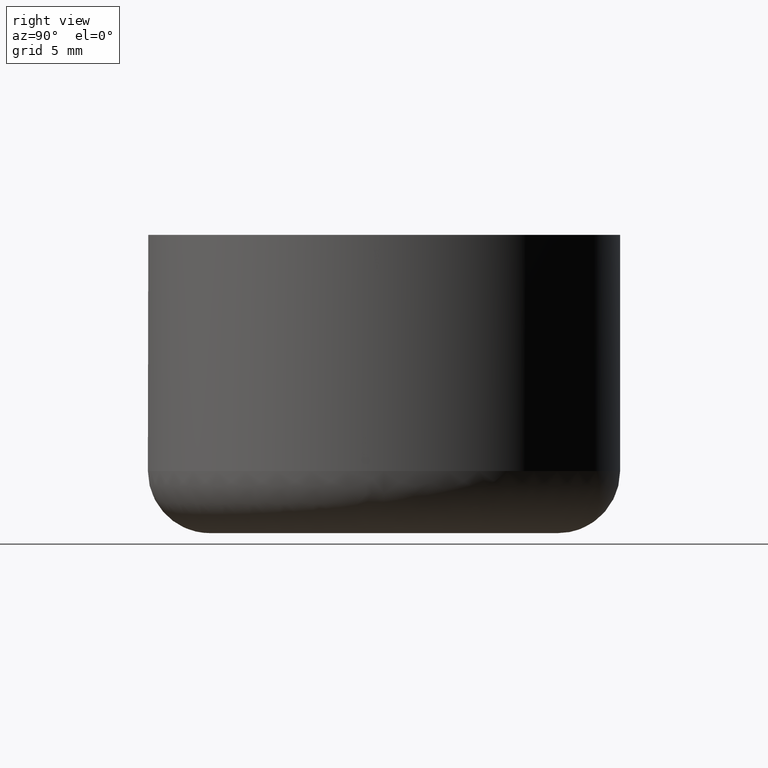
[diagram: clean part render]
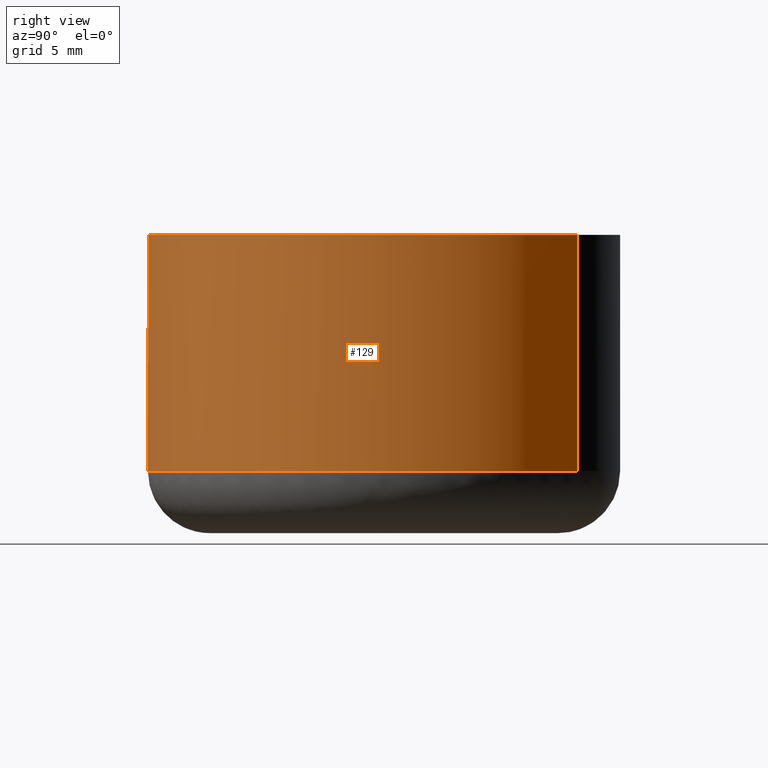
[diagram: same view with one face highlighted and labeled with its STEP entity id]
A machine part, right view. The second image highlights one B-rep face of the part: STEP entity #129.
In plain terms, the highlighted cylindrical surface (partial cylindrical patch) has radius 9.5 mm, axis along (-0, 0, 1).
Its self-contained STEP definition (entity closure, byte-faithful):
#129=ADVANCED_FACE('',(#309),#308,.T.);
#308=CYLINDRICAL_SURFACE('',#432,9.50000000000E+000);
#309=FACE_OUTER_BOUND('',#433,.T.);
#429=CARTESIAN_POINT('',(-3.04271018864E-015,3.51144497067E-015,1.22375000000E+001));
#430=DIRECTION('',(-5.20716812179E-016,7.03630289371E-016,1.00000000000E+000));
#431=DIRECTION('',(5.70840232490E-001,8.21061160311E-001,-2.80477395695E-016));
#432=AXIS2_PLACEMENT_3D('',#429,#430,#431);
#433=EDGE_LOOP('',(#580,#581,#582,#583,#584,#585,#586));
#580=ORIENTED_EDGE('',*,*,#655,.F.);
#581=ORIENTED_EDGE('',*,*,#656,.F.);
#582=ORIENTED_EDGE('',*,*,#657,.F.);
#583=ORIENTED_EDGE('',*,*,#648,.T.);
#584=ORIENTED_EDGE('',*,*,#624,.T.);
#585=ORIENTED_EDGE('',*,*,#626,.T.);
#586=ORIENTED_EDGE('',*,*,#654,.F.);
#624=EDGE_CURVE('',#810,#811,#812,.T.);
#626=EDGE_CURVE('',#811,#818,#825,.T.);
#648=EDGE_CURVE('',#972,#810,#973,.T.);
#654=EDGE_CURVE('',#1007,#818,#1014,.T.);
#655=EDGE_CURVE('',#1020,#1007,#1021,.T.);
#656=EDGE_CURVE('',#1027,#1020,#1028,.T.);
#657=EDGE_CURVE('',#972,#1027,#1034,.T.);
#810=VERTEX_POINT('',#1150);
#811=VERTEX_POINT('',#1151);
#812=CIRCLE('',#1155,9.50000000000E+000);
#818=VERTEX_POINT('',#1156);
#825=CIRCLE('',#1164,9.50000000000E+000);
#972=VERTEX_POINT('',#1252);
#973=(BOUNDED_CURVE() B_SPLINE_CURVE(1,(#1253,#1254),.UNSPECIFIED.,.F.,.F.) B_SPLINE_CURVE_WITH_KNOTS((2,2),(8.33333343261E-002,9.16666667006E-001),.UNSPECIFIED.) CURVE() GEOMETRIC_REPRESENTATION_ITEM() RATIONAL_B_SPLINE_CURVE((1.00000000000E+000,1.00000000000E+000)) REPRESENTATION_ITEM('') );
#1007=VERTEX_POINT('',#1275);
#1014=(BOUNDED_CURVE() B_SPLINE_CURVE(1,(#1280,#1281),.UNSPECIFIED.,.F.,.F.) B_SPLINE_CURVE_WITH_KNOTS((2,2),(8.33333333347E-002,9.16666666667E-001),.UNSPECIFIED.) CURVE() GEOMETRIC_REPRESENTATION_ITEM() RATIONAL_B_SPLINE_CURVE((7.50000000000E-001,7.50000000000E-001)) REPRESENTATION_ITEM('') );
#1020=VERTEX_POINT('',#1282);
#1021=CIRCLE('',#1286,9.50000000001E+000);
#1027=VERTEX_POINT('',#1287);
#1028=CIRCLE('',#1291,9.50000000001E+000);
#1034=CIRCLE('',#1295,9.50000000000E+000);
#1150=CARTESIAN_POINT('',(5.42298194808E+000,7.80008120411E+000,1.20000000000E+001));
#1151=CARTESIAN_POINT('',(7.45355962591E-001,-9.47071509914E+000,1.20000000000E+001));
#1152=CARTESIAN_POINT('',(-5.24913446043E-013,-2.26485497024E-014,1.20000000000E+001));
#1153=DIRECTION('',(2.07784528273E-015,1.74368434370E-015,-1.00000000000E+000));
#1154=DIRECTION('',(7.84585223781E-002,-9.96917378857E-001,-1.57528455486E-015));
#1155=AXIS2_PLACEMENT_3D('',#1152,#1153,#1154);
#1156=CARTESIAN_POINT('',(-5.42455823649E+000,-7.79898505826E+000,1.20000000000E+001));
#1161=CARTESIAN_POINT('',(-5.24913446043E-013,-2.26485497024E-014,1.20000000000E+001));
#1162=DIRECTION('',(2.07784528273E-015,1.74368434370E-015,-1.00000000000E+000));
#1163=DIRECTION('',(7.84585223781E-002,-9.96917378857E-001,-1.57528455486E-015));
#1164=AXIS2_PLACEMENT_3D('',#1161,#1162,#1163);
#1252=CARTESIAN_POINT('',(5.42298235624E+000,7.80008092035E+000,2.50000000054E+000));
#1253=CARTESIAN_POINT('',(5.42298220866E+000,7.80008102295E+000,2.50000001129E+000));
#1254=CARTESIAN_POINT('',(5.42298220866E+000,7.80008102295E+000,1.20000000039E+001));
#1275=CARTESIAN_POINT('',(-5.42323242363E+000,-7.79990705581E+000,2.49999999999E+000));
#1280=CARTESIAN_POINT('',(-5.42298220866E+000,-7.80008102295E+000,2.49999999998E+000));
#1281=CARTESIAN_POINT('',(-5.42298220866E+000,-7.80008102295E+000,1.20000000000E+001));
#1282=CARTESIAN_POINT('',(-5.93234042732E-014,-9.50000000000E+000,2.50000000000E+000));
#1283=CARTESIAN_POINT('',(7.26529947315E-012,4.59454696511E-012,2.49999999997E+000));
#1284=DIRECTION('',(9.30052199100E-016,-3.38918239541E-012,-1.00000000000E+000));
#1285=DIRECTION('',(5.70840059522E-001,8.21061280566E-001,-2.78219552659E-012));
#1286=AXIS2_PLACEMENT_3D('',#1283,#1284,#1285);
#1287=CARTESIAN_POINT('',(9.50000000000E+000,0.00000000000E+000,2.50000000000E+000));
#1288=CARTESIAN_POINT('',(7.26529947315E-012,4.59454696511E-012,2.49999999997E+000));
#1289=DIRECTION('',(9.30052199100E-016,-3.38918239541E-012,-1.00000000000E+000));
#1290=DIRECTION('',(5.70840059522E-001,8.21061280566E-001,-2.78219552659E-012));
#1291=AXIS2_PLACEMENT_3D('',#1288,#1289,#1290);
#1292=CARTESIAN_POINT('',(7.10542735760E-015,2.66453525910E-015,2.49999999995E+000));
#1293=DIRECTION('',(9.57293467828E-011,8.64344668673E-012,-1.00000000000E+000));
#1294=DIRECTION('',(6.97332515756E-002,-9.97565673840E-001,-1.94688709598E-012));
#1295=AXIS2_PLACEMENT_3D('',#1292,#1293,#1294);